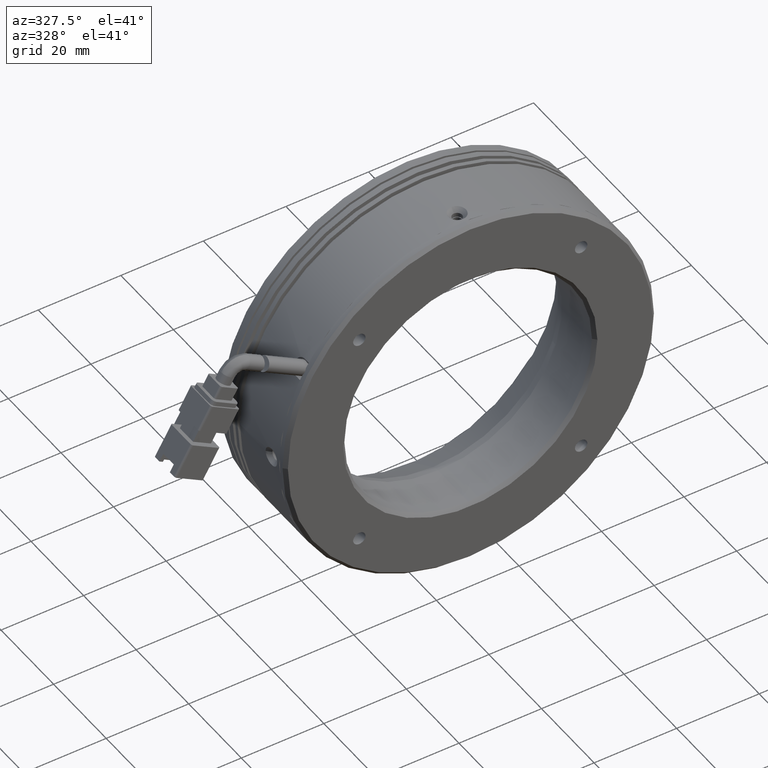
[diagram: clean part render]
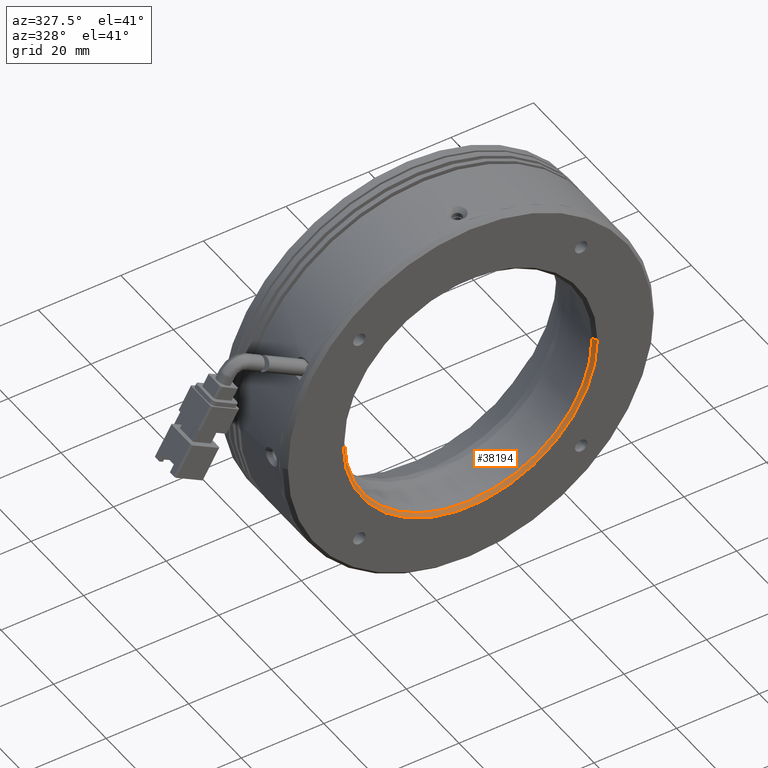
[diagram: same view with one face highlighted and labeled with its STEP entity id]
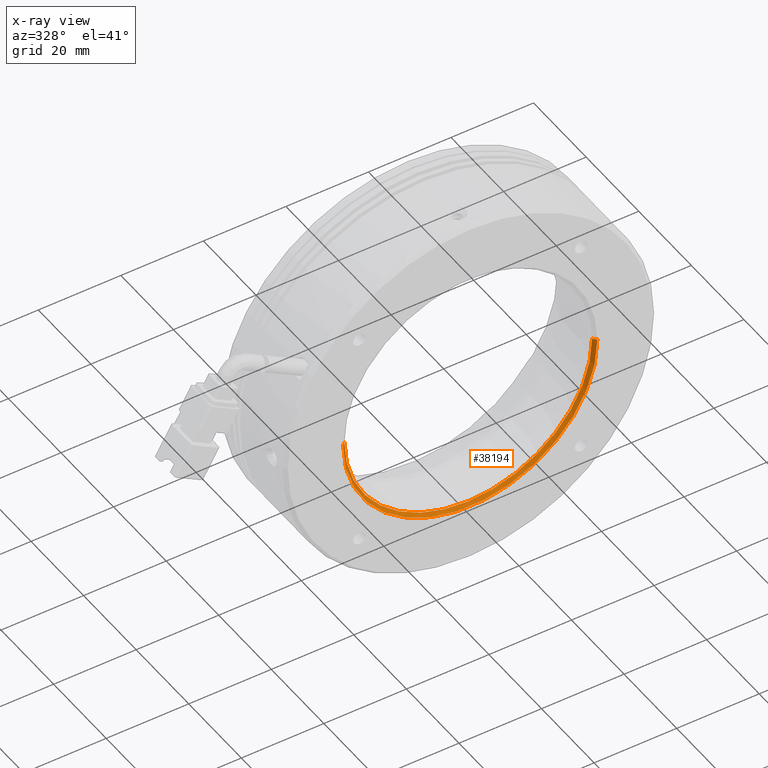
[diagram: x-ray of the same camera — body ghosted, the highlighted face saturated]
A machine part, auxiliary view. The second image highlights one B-rep face of the part: STEP entity #38194.
The next image is the same camera in x-ray: the body ghosted, the highlighted face saturated — about 0% of this face is hidden behind the body in this view.
In plain terms, the highlighted conical surface has half-angle 45 deg.
Its self-contained STEP definition (entity closure, byte-faithful):
#113 = CARTESIAN_POINT ( 'NONE',  ( 21.37667247461710900, 5.773604335538893300, 0.0000000000000000000 ) ) ;
#379 = CARTESIAN_POINT ( 'NONE',  ( 22.17667247461710600, 4.973604335538893500, 0.0000000000000000000 ) ) ;
#1377 = CARTESIAN_POINT ( 'NONE',  ( -39.42332752538288100, 4.973604335538896100, 3.771912141373847600E-015 ) ) ;
#2388 = CONICAL_SURFACE ( 'NONE', #54559, 30.79999999999999700, 0.7853981633974482800 ) ;
#4248 = AXIS2_PLACEMENT_3D ( 'NONE', #77739, #19879, #87510 ) ;
#11624 = ORIENTED_EDGE ( 'NONE', *, *, #50102, .F. ) ;
#14336 = DIRECTION ( 'NONE',  ( 0.7071067811865474600, -0.7071067811865475700, 0.0000000000000000000 ) ) ;
#14563 = FACE_OUTER_BOUND ( 'NONE', #50308, .T. ) ;
#17237 = CARTESIAN_POINT ( 'NONE',  ( -8.623327525382890700, 5.773604335538893300, 0.0000000000000000000 ) ) ;
#19038 = EDGE_CURVE ( 'NONE', #69246, #113339, #22064, .T. ) ;
#19879 = DIRECTION ( 'NONE',  ( -5.632219077846778200E-017, -1.000000000000000000, 0.0000000000000000000 ) ) ;
#20846 = CIRCLE ( 'NONE', #32966, 30.00000000000000000 ) ;
#20880 = CARTESIAN_POINT ( 'NONE',  ( -38.62332752538289100, 5.773604335538893300, 3.722926269407954200E-015 ) ) ;
#22064 = LINE ( 'NONE', #1377, #70391 ) ;
#23626 = VECTOR ( 'NONE', #14336, 1000.000000000000000 ) ;
#25933 = ORIENTED_EDGE ( 'NONE', *, *, #19038, .T. ) ;
#26665 = LINE ( 'NONE', #81928, #23626 ) ;
#26970 = DIRECTION ( 'NONE',  ( 0.0000000000000000000, 0.0000000000000000000, -1.000000000000000000 ) ) ;
#32966 = AXIS2_PLACEMENT_3D ( 'NONE', #17237, #84845, #26970 ) ;
#36191 = CARTESIAN_POINT ( 'NONE',  ( -8.623327525382890700, 4.973604335538894400, 0.0000000000000000000 ) ) ;
#38057 = ORIENTED_EDGE ( 'NONE', *, *, #97878, .T. ) ;
#38194 = ADVANCED_FACE ( 'NONE', ( #14563 ), #2388, .F. ) ;
#40024 = CIRCLE ( 'NONE', #90637, 30.00000000000000000 ) ;
#41470 = CARTESIAN_POINT ( 'NONE',  ( -8.623327525382890700, 5.773604335538893300, 0.0000000000000000000 ) ) ;
#45857 = DIRECTION ( 'NONE',  ( -5.632219077846778200E-017, -1.000000000000000000, 0.0000000000000000000 ) ) ;
#50102 = EDGE_CURVE ( 'NONE', #69246, #114310, #40024, .T. ) ;
#50308 = EDGE_LOOP ( 'NONE', ( #11624, #25933, #38057, #119722, #86020 ) ) ;
#51147 = DIRECTION ( 'NONE',  ( 0.0000000000000000000, 0.0000000000000000000, -1.000000000000000000 ) ) ;
#54559 = AXIS2_PLACEMENT_3D ( 'NONE', #36191, #45857, #84751 ) ;
#64328 = VERTEX_POINT ( 'NONE', #379 ) ;
#65918 = CIRCLE ( 'NONE', #4248, 30.79999999999999700 ) ;
#69246 = VERTEX_POINT ( 'NONE', #20880 ) ;
#70391 = VECTOR ( 'NONE', #78694, 1000.000000000000000 ) ;
#77739 = CARTESIAN_POINT ( 'NONE',  ( -8.623327525382890700, 4.973604335538894400, 0.0000000000000000000 ) ) ;
#78694 = DIRECTION ( 'NONE',  ( -0.7071067811865474600, -0.7071067811865475700, 8.659560562354931600E-017 ) ) ;
#81928 = CARTESIAN_POINT ( 'NONE',  ( 22.17667247461710600, 4.973604335538893500, 0.0000000000000000000 ) ) ;
#84751 = DIRECTION ( 'NONE',  ( 1.000000000000000000, -5.632219077846777000E-017, 0.0000000000000000000 ) ) ;
#84845 = DIRECTION ( 'NONE',  ( 0.0000000000000000000, -1.000000000000000000, 0.0000000000000000000 ) ) ;
#86020 = ORIENTED_EDGE ( 'NONE', *, *, #100088, .F. ) ;
#86126 = CARTESIAN_POINT ( 'NONE',  ( -39.42332752538288100, 4.973604335538896100, 3.771912141373847600E-015 ) ) ;
#87510 = DIRECTION ( 'NONE',  ( 1.000000000000000000, -5.632219077846777000E-017, 0.0000000000000000000 ) ) ;
#89283 = VERTEX_POINT ( 'NONE', #113 ) ;
#90637 = AXIS2_PLACEMENT_3D ( 'NONE', #41470, #109247, #51147 ) ;
#97878 = EDGE_CURVE ( 'NONE', #113339, #64328, #65918, .T. ) ;
#100088 = EDGE_CURVE ( 'NONE', #114310, #89283, #20846, .T. ) ;
#104127 = CARTESIAN_POINT ( 'NONE',  ( -8.623327525382890700, 5.773604335538893300, -30.00000000000000000 ) ) ;
#109247 = DIRECTION ( 'NONE',  ( 0.0000000000000000000, -1.000000000000000000, 0.0000000000000000000 ) ) ;
#111474 = EDGE_CURVE ( 'NONE', #89283, #64328, #26665, .T. ) ;
#113339 = VERTEX_POINT ( 'NONE', #86126 ) ;
#114310 = VERTEX_POINT ( 'NONE', #104127 ) ;
#119722 = ORIENTED_EDGE ( 'NONE', *, *, #111474, .F. ) ;